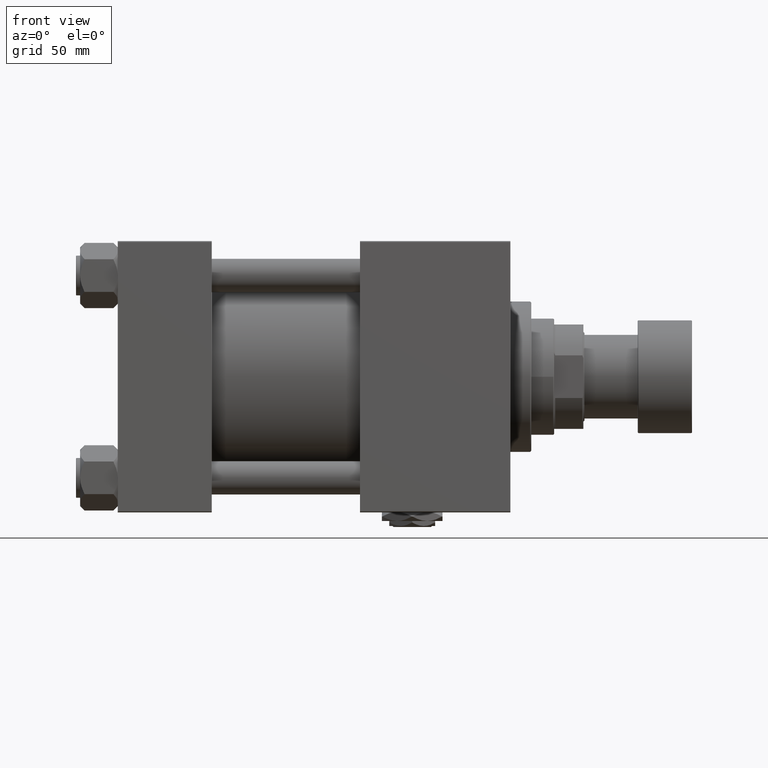
[diagram: clean part render]
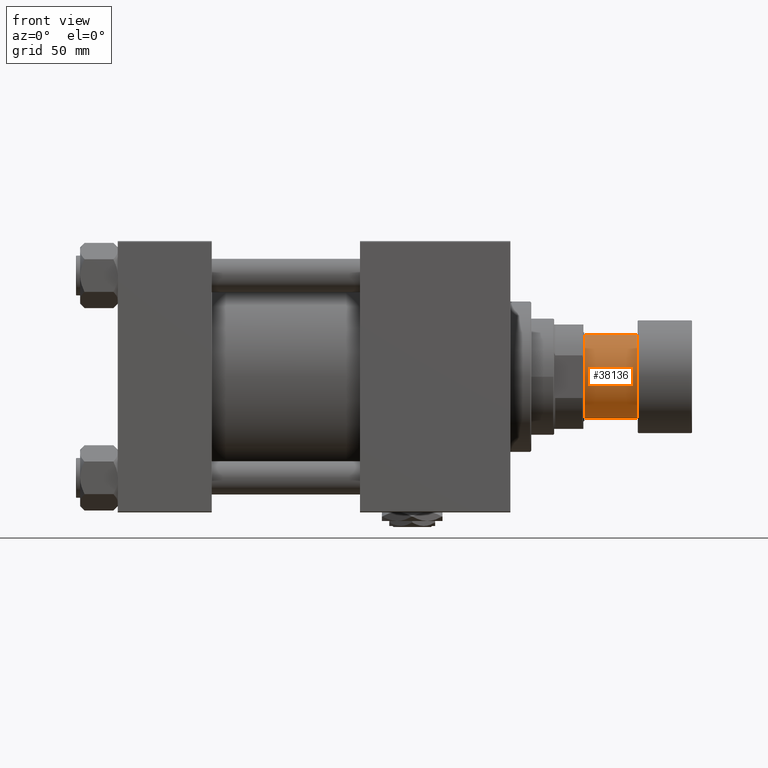
[diagram: same view with one face highlighted and labeled with its STEP entity id]
A machine part, front view. The second image highlights one B-rep face of the part: STEP entity #38136.
In plain terms, the highlighted cylindrical surface (partial cylindrical patch) has radius 20 mm, axis along (1, 0, 0).
Its self-contained STEP definition (entity closure, byte-faithful):
#579 = DIRECTION ( 'NONE',  ( -0.000000000000000000, -0.000000000000000000, 1.000000000000000000 ) ) ;
#615 = DIRECTION ( 'NONE',  ( -0.000000000000000000, -0.000000000000000000, 1.000000000000000000 ) ) ;
#1268 = AXIS2_PLACEMENT_3D ( 'NONE', #6225, #26092, #10527 ) ;
#1624 = CARTESIAN_POINT ( 'NONE',  ( 20.00000000000000000, 0.000000000000000000, -26.00000000000000000 ) ) ;
#4205 = EDGE_CURVE ( 'NONE', #30965, #22433, #26548, .T. ) ;
#4296 = AXIS2_PLACEMENT_3D ( 'NONE', #29417, #25371, #17330 ) ;
#6225 = CARTESIAN_POINT ( 'NONE',  ( 0.000000000000000000, 0.000000000000000000, -51.50000000000000000 ) ) ;
#8850 = CARTESIAN_POINT ( 'NONE',  ( -20.00000000000000000, 2.449293598294706513E-15, -51.50000000000000000 ) ) ;
#8914 = LINE ( 'NONE', #25803, #16571 ) ;
#10527 = DIRECTION ( 'NONE',  ( -1.000000000000000000, 0.000000000000000000, 0.000000000000000000 ) ) ;
#11320 = EDGE_CURVE ( 'NONE', #45510, #44208, #21864, .T. ) ;
#13598 = EDGE_LOOP ( 'NONE', ( #52532, #30231, #49835, #46265 ) ) ;
#16571 = VECTOR ( 'NONE', #579, 1000.000000000000000 ) ;
#17330 = DIRECTION ( 'NONE',  ( -1.000000000000000000, 0.000000000000000000, 0.000000000000000000 ) ) ;
#17531 = CYLINDRICAL_SURFACE ( 'NONE', #40583, 20.00000000000000000 ) ;
#21864 = CIRCLE ( 'NONE', #1268, 20.00000000000000000 ) ;
#22433 = VERTEX_POINT ( 'NONE', #49847 ) ;
#25064 = FACE_OUTER_BOUND ( 'NONE', #13598, .T. ) ;
#25371 = DIRECTION ( 'NONE',  ( 0.000000000000000000, 0.000000000000000000, -1.000000000000000000 ) ) ;
#25803 = CARTESIAN_POINT ( 'NONE',  ( -20.00000000000000000, 2.449293598294706513E-15, -51.50000000000000000 ) ) ;
#26092 = DIRECTION ( 'NONE',  ( 0.000000000000000000, 0.000000000000000000, -1.000000000000000000 ) ) ;
#26548 = CIRCLE ( 'NONE', #4296, 20.00000000000000000 ) ;
#28571 = VECTOR ( 'NONE', #46945, 1000.000000000000000 ) ;
#29417 = CARTESIAN_POINT ( 'NONE',  ( 0.000000000000000000, 0.000000000000000000, -26.00000000000000000 ) ) ;
#30231 = ORIENTED_EDGE ( 'NONE', *, *, #11320, .F. ) ;
#30595 = CARTESIAN_POINT ( 'NONE',  ( 20.00000000000000000, 0.000000000000000000, -51.50000000000000000 ) ) ;
#30965 = VERTEX_POINT ( 'NONE', #1624 ) ;
#32808 = EDGE_CURVE ( 'NONE', #44208, #22433, #8914, .T. ) ;
#33902 = CARTESIAN_POINT ( 'NONE',  ( 0.000000000000000000, 0.000000000000000000, -51.50000000000000000 ) ) ;
#37702 = EDGE_CURVE ( 'NONE', #45510, #30965, #38361, .T. ) ;
#38136 = ADVANCED_FACE ( 'NONE', ( #25064 ), #17531, .T. ) ;
#38361 = LINE ( 'NONE', #30595, #28571 ) ;
#40583 = AXIS2_PLACEMENT_3D ( 'NONE', #33902, #615, #50250 ) ;
#41004 = CARTESIAN_POINT ( 'NONE',  ( 20.00000000000000000, 0.000000000000000000, -51.50000000000000000 ) ) ;
#44208 = VERTEX_POINT ( 'NONE', #8850 ) ;
#45510 = VERTEX_POINT ( 'NONE', #41004 ) ;
#46265 = ORIENTED_EDGE ( 'NONE', *, *, #4205, .T. ) ;
#46945 = DIRECTION ( 'NONE',  ( -0.000000000000000000, -0.000000000000000000, 1.000000000000000000 ) ) ;
#49835 = ORIENTED_EDGE ( 'NONE', *, *, #37702, .T. ) ;
#49847 = CARTESIAN_POINT ( 'NONE',  ( -20.00000000000000000, 2.449293598294706513E-15, -26.00000000000000000 ) ) ;
#50250 = DIRECTION ( 'NONE',  ( 1.000000000000000000, 0.000000000000000000, 0.000000000000000000 ) ) ;
#52532 = ORIENTED_EDGE ( 'NONE', *, *, #32808, .F. ) ;